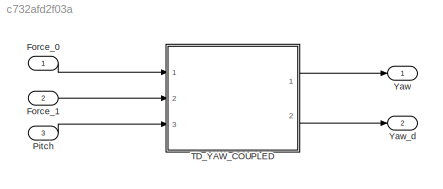
MODEL slx_c732afd2f03a
KIND model
CONFIG AbsTol = auto
CONFIG EnableMultiTasking = off
CONFIG FixedStep = auto
CONFIG MaxStep = auto
CONFIG MinStep = auto
CONFIG RelTol = 1e-3
CONFIG SampleTimeConstraint = Unconstrained
CONFIG Solver = VariableStepAuto
CONFIG SolverName = VariableStepAuto
CONFIG StartTime = 0.0
CONFIG StopTime = 10.0
BLOCK [Inport] Force_0
  IconDisplay = Port number
BLOCK [Inport] Force_1 
  IconDisplay = Port number
  Port = 2
BLOCK [Inport] Pitch
  IconDisplay = Port number
  Port = 3
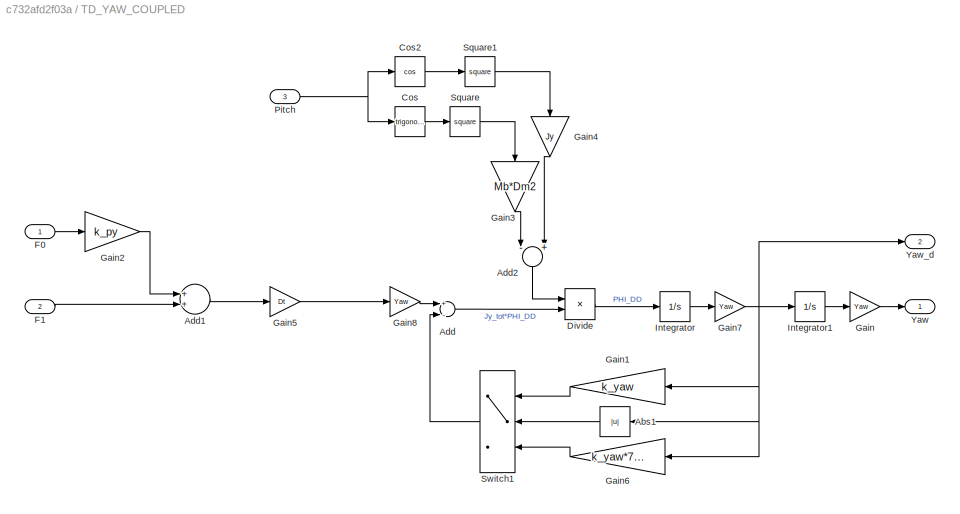
BLOCK [SubSystem] TD_YAW_COUPLED
  Ports = [3, 2]
  RequestExecContextInheritance = off
BLOCK [Abs] TD_YAW_COUPLED/Abs1
  SaturateOnIntegerOverflow = off
BLOCK [Sum] TD_YAW_COUPLED/Add
  InputSameDT = off
  Inputs = +-
  OutDataTypeStr = Inherit: Inherit via internal rule
  Ports = [2, 1]
  SaturateOnIntegerOverflow = off
BLOCK [Sum] TD_YAW_COUPLED/Add1
  InputSameDT = off
  OutDataTypeStr = Inherit: Inherit via internal rule
  Ports = [2, 1]
  SaturateOnIntegerOverflow = off
BLOCK [Sum] TD_YAW_COUPLED/Add2
  InputSameDT = off
  Inputs = -+
  OutDataTypeStr = Inherit: Inherit via internal rule
  Ports = [2, 1]
  SaturateOnIntegerOverflow = off
BLOCK [Trigonometry] TD_YAW_COUPLED/Cos
  Ports = [1, 1]
BLOCK [Trigonometry] TD_YAW_COUPLED/Cos2
  Operator = cos
  Ports = [1, 1]
BLOCK [Product] TD_YAW_COUPLED/Divide
  InputSameDT = off
  Inputs = /*
  OutDataTypeStr = Inherit: Inherit via internal rule
  Ports = [2, 1]
  RndMeth = Floor
  SaturateOnIntegerOverflow = off
BLOCK [Inport] TD_YAW_COUPLED/F0
  IconDisplay = Port number
BLOCK [Inport] TD_YAW_COUPLED/F1
  IconDisplay = Port number
  Port = 2
BLOCK [Gain] TD_YAW_COUPLED/Gain
  Gain = Yaw
  OutDataTypeStr = Inherit: Inherit via internal rule
  ParamDataTypeStr = Inherit: Inherit via internal rule
  SaturateOnIntegerOverflow = off
BLOCK [Gain] TD_YAW_COUPLED/Gain1
  Gain = k_yaw
  OutDataTypeStr = Inherit: Inherit via internal rule
  ParamDataTypeStr = Inherit: Inherit via internal rule
  SaturateOnIntegerOverflow = off
BLOCK [Gain] TD_YAW_COUPLED/Gain2
  Gain = k_py
  OutDataTypeStr = Inherit: Inherit via internal rule
  ParamDataTypeStr = Inherit: Inherit via internal rule
  SaturateOnIntegerOverflow = off
BLOCK [Gain] TD_YAW_COUPLED/Gain3
  Gain = Mb*Dm2
  OutDataTypeStr = Inherit: Inherit via internal rule
  ParamDataTypeStr = Inherit: Inherit via internal rule
  SaturateOnIntegerOverflow = off
BLOCK [Gain] TD_YAW_COUPLED/Gain4
  Gain = Jy
  OutDataTypeStr = Inherit: Inherit via internal rule
  ParamDataTypeStr = Inherit: Inherit via internal rule
  SaturateOnIntegerOverflow = off
BLOCK [Gain] TD_YAW_COUPLED/Gain5
  Gain = Dt
  OutDataTypeStr = Inherit: Inherit via internal rule
  ParamDataTypeStr = Inherit: Inherit via internal rule
  SaturateOnIntegerOverflow = off
BLOCK [Gain] TD_YAW_COUPLED/Gain6
  Gain = k_yaw*7.5
  OutDataTypeStr = Inherit: Inherit via internal rule
  ParamDataTypeStr = Inherit: Inherit via internal rule
  SaturateOnIntegerOverflow = off
BLOCK [Gain] TD_YAW_COUPLED/Gain7
  Gain = Yaw
  OutDataTypeStr = Inherit: Inherit via internal rule
  ParamDataTypeStr = Inherit: Inherit via internal rule
  SaturateOnIntegerOverflow = off
BLOCK [Gain] TD_YAW_COUPLED/Gain8
  Gain = Yaw
  OutDataTypeStr = Inherit: Inherit via internal rule
  ParamDataTypeStr = Inherit: Inherit via internal rule
  SaturateOnIntegerOverflow = off
BLOCK [Integrator] TD_YAW_COUPLED/Integrator
  Ports = [1, 1]
BLOCK [Integrator] TD_YAW_COUPLED/Integrator1
  Ports = [1, 1]
BLOCK [Inport] TD_YAW_COUPLED/Pitch
  IconDisplay = Port number
  Port = 3
BLOCK [Math] TD_YAW_COUPLED/Square
  Operator = square
  Ports = [1, 1]
  SignedPower = off
BLOCK [Math] TD_YAW_COUPLED/Square1
  Operator = square
  Ports = [1, 1]
  SignedPower = off
BLOCK [Switch] TD_YAW_COUPLED/Switch1
  Criteria = u2 > Threshold
  InputSameDT = off
  SaturateOnIntegerOverflow = off
  Threshold = 0.3
BLOCK [Outport] TD_YAW_COUPLED/Yaw
  IconDisplay = Port number
BLOCK [Outport] TD_YAW_COUPLED/Yaw_d
  IconDisplay = Port number
  Port = 2
BLOCK [Outport] Yaw
  IconDisplay = Port number
BLOCK [Outport] Yaw_d
  IconDisplay = Port number
  Port = 2
LINE Force_0:1 -> TD_YAW_COUPLED:1
LINE Force_1 :1 -> TD_YAW_COUPLED:2
LINE Pitch:1 -> TD_YAW_COUPLED:3
LINE TD_YAW_COUPLED/Abs1:1 -> TD_YAW_COUPLED/Switch1:2
LINE TD_YAW_COUPLED/Add1:1 -> TD_YAW_COUPLED/Gain5:1
LINE TD_YAW_COUPLED/Add2:1 -> TD_YAW_COUPLED/Divide:1
LINE TD_YAW_COUPLED/Add:1 -> TD_YAW_COUPLED/Divide:2
LINE TD_YAW_COUPLED/Cos2:1 -> TD_YAW_COUPLED/Square1:1
LINE TD_YAW_COUPLED/Cos:1 -> TD_YAW_COUPLED/Square:1
LINE TD_YAW_COUPLED/Divide:1 -> TD_YAW_COUPLED/Integrator:1
LINE TD_YAW_COUPLED/F0:1 -> TD_YAW_COUPLED/Gain2:1
LINE TD_YAW_COUPLED/F1:1 -> TD_YAW_COUPLED/Add1:2
LINE TD_YAW_COUPLED/Gain1:1 -> TD_YAW_COUPLED/Switch1:1
LINE TD_YAW_COUPLED/Gain2:1 -> TD_YAW_COUPLED/Add1:1
LINE TD_YAW_COUPLED/Gain3:1 -> TD_YAW_COUPLED/Add2:1
LINE TD_YAW_COUPLED/Gain4:1 -> TD_YAW_COUPLED/Add2:2
LINE TD_YAW_COUPLED/Gain5:1 -> TD_YAW_COUPLED/Gain8:1
LINE TD_YAW_COUPLED/Gain6:1 -> TD_YAW_COUPLED/Switch1:3
NET TD_YAW_COUPLED/Gain7:1 -> TD_YAW_COUPLED/Abs1:1, TD_YAW_COUPLED/Gain1:1, TD_YAW_COUPLED/Gain6:1, TD_YAW_COUPLED/Integrator1:1, TD_YAW_COUPLED/Yaw_d:1
LINE TD_YAW_COUPLED/Gain8:1 -> TD_YAW_COUPLED/Add:1
LINE TD_YAW_COUPLED/Gain:1 -> TD_YAW_COUPLED/Yaw:1
LINE TD_YAW_COUPLED/Integrator1:1 -> TD_YAW_COUPLED/Gain:1
LINE TD_YAW_COUPLED/Integrator:1 -> TD_YAW_COUPLED/Gain7:1
NET TD_YAW_COUPLED/Pitch:1 -> TD_YAW_COUPLED/Cos2:1, TD_YAW_COUPLED/Cos:1
LINE TD_YAW_COUPLED/Square1:1 -> TD_YAW_COUPLED/Gain4:1
LINE TD_YAW_COUPLED/Square:1 -> TD_YAW_COUPLED/Gain3:1
LINE TD_YAW_COUPLED/Switch1:1 -> TD_YAW_COUPLED/Add:2
LINE TD_YAW_COUPLED:1 -> Yaw:1
LINE TD_YAW_COUPLED:2 -> Yaw_d:1
note: NET lines group one-source signal fan-out (src -> all destinations, sorted); 1:1 wires keep LINE
